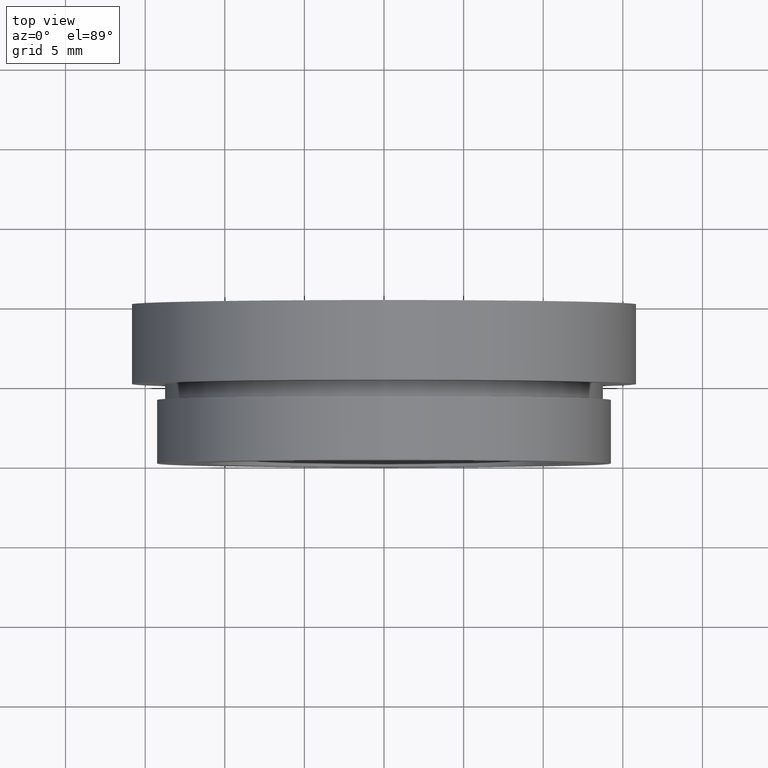
[diagram: clean part render]
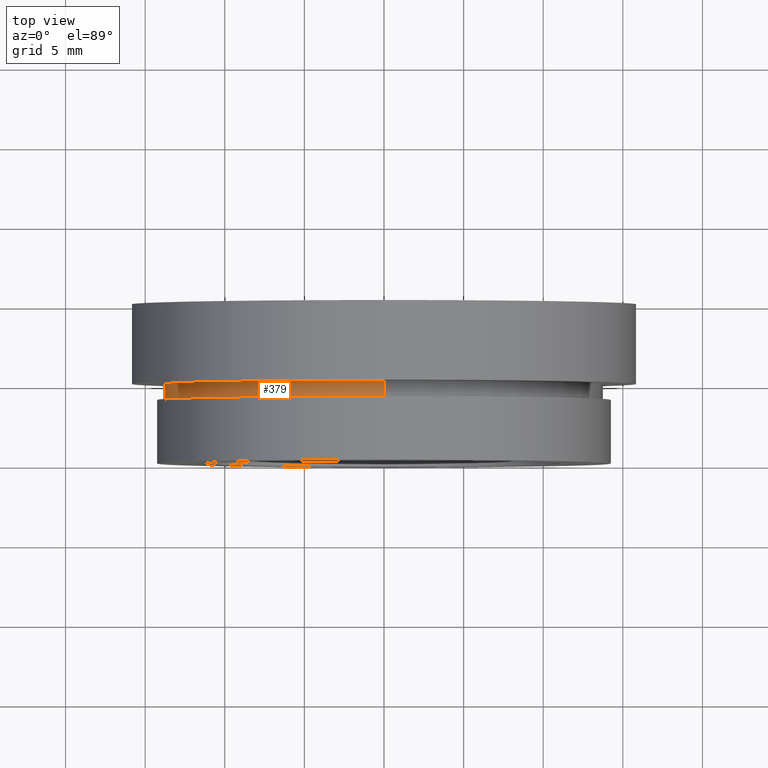
[diagram: same view with one face highlighted and labeled with its STEP entity id]
A machine part, top view. The second image highlights one B-rep face of the part: STEP entity #379.
In plain terms, the highlighted cylindrical surface (partial cylindrical patch) has radius 13.75 mm, axis along (-0, 1, -0).
Its self-contained STEP definition (entity closure, byte-faithful):
#10 = EDGE_CURVE ( 'NONE', #321, #36, #128, .T. ) ;
#36 = VERTEX_POINT ( 'NONE', #404 ) ;
#44 = CARTESIAN_POINT ( 'NONE',  ( 0.0000000000000000000, 13.74468085106383300, 13.75000000000000000 ) ) ;
#71 = DIRECTION ( 'NONE',  ( -0.0000000000000000000, 1.000000000000000000, -0.0000000000000000000 ) ) ;
#81 = CARTESIAN_POINT ( 'NONE',  ( 1.683889348827610700E-015, 4.000000000000000000, -13.75000000000000000 ) ) ;
#92 = EDGE_CURVE ( 'NONE', #218, #390, #397, .T. ) ;
#122 = CARTESIAN_POINT ( 'NONE',  ( 0.0000000000000000000, 13.74468085106383300, 0.0000000000000000000 ) ) ;
#123 = EDGE_CURVE ( 'NONE', #36, #390, #575, .T. ) ;
#128 = CIRCLE ( 'NONE', #543, 13.75000000000000000 ) ;
#131 = EDGE_CURVE ( 'NONE', #321, #218, #359, .T. ) ;
#150 = DIRECTION ( 'NONE',  ( 0.0000000000000000000, 0.0000000000000000000, 1.000000000000000000 ) ) ;
#194 = FACE_OUTER_BOUND ( 'NONE', #281, .T. ) ;
#207 = AXIS2_PLACEMENT_3D ( 'NONE', #208, #71, #150 ) ;
#208 = CARTESIAN_POINT ( 'NONE',  ( 0.0000000000000000000, 4.999999999999999100, 0.0000000000000000000 ) ) ;
#218 = VERTEX_POINT ( 'NONE', #606 ) ;
#233 = DIRECTION ( 'NONE',  ( -0.0000000000000000000, 1.000000000000000000, -0.0000000000000000000 ) ) ;
#237 = CARTESIAN_POINT ( 'NONE',  ( 0.0000000000000000000, 4.999999999999999100, 13.75000000000000000 ) ) ;
#258 = AXIS2_PLACEMENT_3D ( 'NONE', #122, #233, #553 ) ;
#281 = EDGE_LOOP ( 'NONE', ( #347, #435, #546, #288 ) ) ;
#288 = ORIENTED_EDGE ( 'NONE', *, *, #92, .F. ) ;
#319 = VECTOR ( 'NONE', #530, 1000.000000000000000 ) ;
#321 = VERTEX_POINT ( 'NONE', #81 ) ;
#347 = ORIENTED_EDGE ( 'NONE', *, *, #131, .F. ) ;
#359 = LINE ( 'NONE', #469, #319 ) ;
#379 = ADVANCED_FACE ( 'NONE', ( #194 ), #499, .T. ) ;
#390 = VERTEX_POINT ( 'NONE', #237 ) ;
#397 = CIRCLE ( 'NONE', #207, 13.75000000000000000 ) ;
#404 = CARTESIAN_POINT ( 'NONE',  ( 0.0000000000000000000, 4.000000000000000000, 13.75000000000000000 ) ) ;
#415 = CARTESIAN_POINT ( 'NONE',  ( 0.0000000000000000000, 4.000000000000000000, 0.0000000000000000000 ) ) ;
#435 = ORIENTED_EDGE ( 'NONE', *, *, #10, .T. ) ;
#456 = DIRECTION ( 'NONE',  ( -0.0000000000000000000, 1.000000000000000000, -0.0000000000000000000 ) ) ;
#469 = CARTESIAN_POINT ( 'NONE',  ( 1.683889348827610700E-015, 13.74468085106383300, -13.75000000000000000 ) ) ;
#471 = DIRECTION ( 'NONE',  ( -0.0000000000000000000, 1.000000000000000000, -0.0000000000000000000 ) ) ;
#499 = CYLINDRICAL_SURFACE ( 'NONE', #258, 13.75000000000000000 ) ;
#530 = DIRECTION ( 'NONE',  ( -0.0000000000000000000, 1.000000000000000000, -0.0000000000000000000 ) ) ;
#543 = AXIS2_PLACEMENT_3D ( 'NONE', #415, #456, #623 ) ;
#546 = ORIENTED_EDGE ( 'NONE', *, *, #123, .T. ) ;
#553 = DIRECTION ( 'NONE',  ( 0.0000000000000000000, 0.0000000000000000000, 1.000000000000000000 ) ) ;
#575 = LINE ( 'NONE', #44, #596 ) ;
#596 = VECTOR ( 'NONE', #471, 1000.000000000000000 ) ;
#606 = CARTESIAN_POINT ( 'NONE',  ( 1.683889348827610700E-015, 4.999999999999999100, -13.75000000000000000 ) ) ;
#623 = DIRECTION ( 'NONE',  ( 0.0000000000000000000, 0.0000000000000000000, 1.000000000000000000 ) ) ;